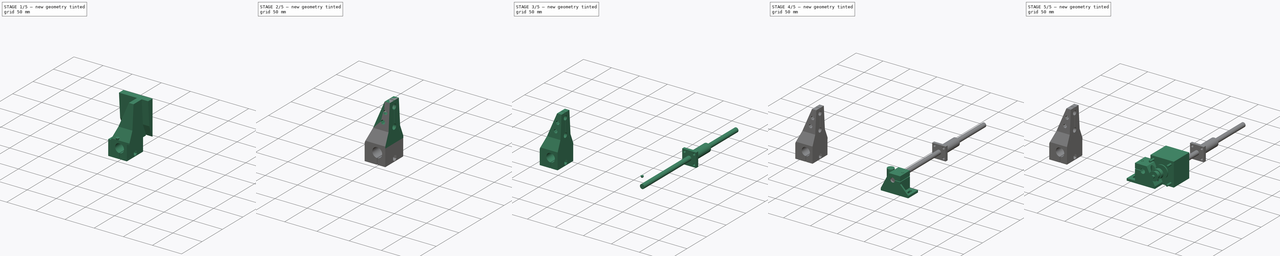
[diagram: build sequence overview — one tinted view per stage of 5, left to right]
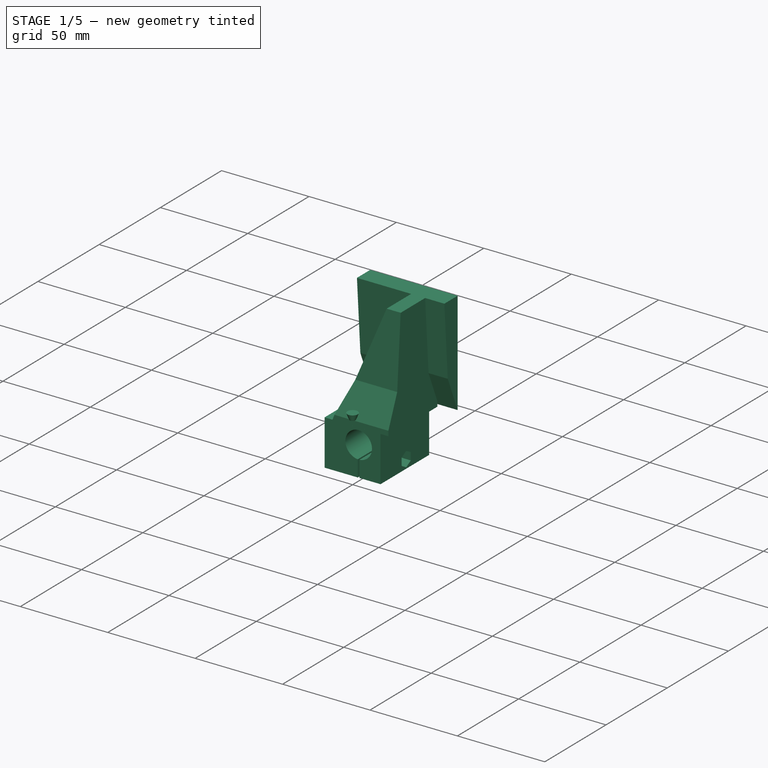
[diagram: stage 1 of 5 — iso view after this stage's code; geometry added in this stage tinted green]
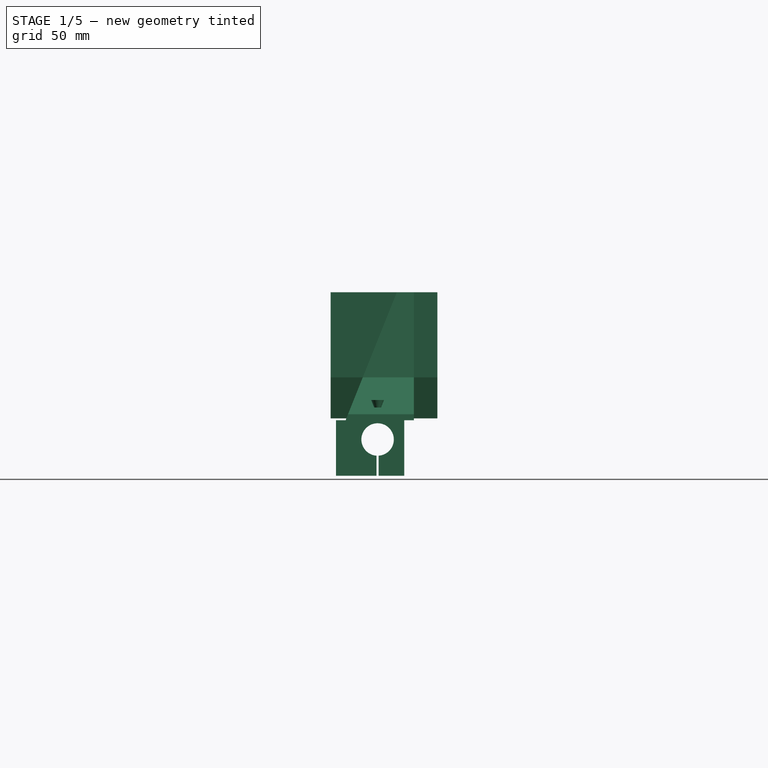
[diagram: stage 1 of 5 — front view after this stage's code; geometry added in this stage tinted green]
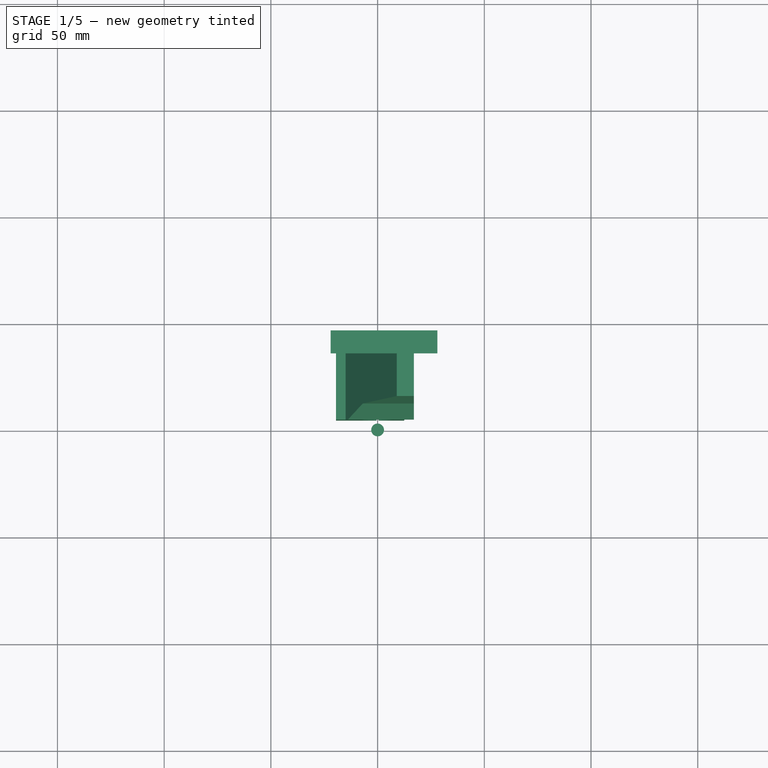
[diagram: stage 1 of 5 — top view after this stage's code; geometry added in this stage tinted green]
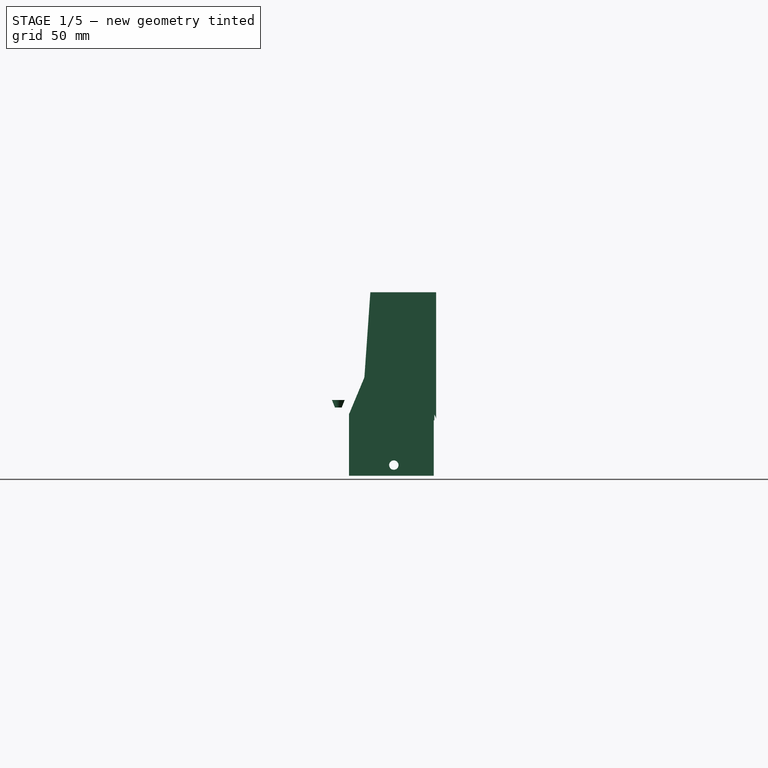
[diagram: stage 1 of 5 — right view after this stage's code; geometry added in this stage tinted green]
FCSTD DOCUMENT  (FreeCAD 0.18R4 (GitTag))
Label: NEMA_17
License: All rights reserved
LicenseURL: http://en.wikipedia.org/wiki/All_rights_reserved
objects: Part::Cylinder×24, Part::Cut×24, Part::MultiFuse×13, Part::Box×9, Part::Extrusion×9, Sketcher::SketchObject×7, Part::Cone×4, Part::RegularPolygon×3, Part::Revolution×1
note: 94 computed .brp shape members not serialized (recipe doc carries the construction recipe); baked Part::Feature solids carry a one-line shape summary decoded from their .brp

FEATURE [Part::Box] Box033  label="Куб033"
  AttacherType = Attacher::AttachEngine3D
  Height = 26
  Length = 32
  Placement = pos=(-19.5,5,-17) rot=(0,0,1;0rad)
  Width = 39.7
FEATURE [Part::Cylinder] Cylinder101  label="Цилиндр090"
  Angle = 360
  AttacherType = Attacher::AttachEngine3D
  Height = 45
  Placement = pos=(0,47.5,7e-15) rot=(1,0,0;1.5708rad)
  Radius = 7.6
FEATURE [Part::Cylinder] Cylinder100  label="Цилиндр089"
  Angle = 360
  AttacherType = Attacher::AttachEngine3D
  Height = 50
  Placement = pos=(-24,26,-8) rot=(0,1,0;1.5708rad)
  Radius = 2.2
FEATURE [Part::Box] Box035  label="Куб035"
  AttacherType = Attacher::AttachEngine3D
  Height = 14
  Length = 1
  Placement = pos=(-0.5,-2,-20) rot=(0,0,1;0rad)
  Width = 52
FEATURE [Sketcher::SketchObject] Sketch022
  Placement = pos=(0,0,0) rot=(0.57735,0.57735,0.57735;2.0944rad)
  sketch-geometry (4):
    g0: LineSegment StartX=15 StartY=69 StartZ=0 EndX=12.2079 EndY=29.0976 EndZ=0
    g1: LineSegment StartX=12.2079 StartY=29.0976 StartZ=0 EndX=4.204 EndY=9.91667 EndZ=0
    g2: LineSegment StartX=4.204 StartY=9.91667 StartZ=0 EndX=4.204 EndY=69 EndZ=0
    g3: LineSegment StartX=15 StartY=69 StartZ=0 EndX=4.204 EndY=69 EndZ=0
  constraints (12):
    c: DistanceX(g0) = 15
    c: DistanceY(g0) = 69
    c: Distance(g0) = 40
    c: Coincident(g1,g0)
    c: Vertical(g2)
    c: Coincident(g2,g1)
    c: Horizontal(g3)
    c: Coincident(g3,g0)
    c: Coincident(g2,g3)
    c: DistanceX(g1) = 4.204
    c: DistanceY(g1) = 9.91667
    c: Angle(g1,g2) = 0.395317
FEATURE [Part::Extrusion] Extrude028
  Base = -> Sketch022
  Dir = (1,0,0)
  DirMode = 0
  FaceMakerClass = Part::FaceMakerBullseye
  LengthFwd = 50
  LengthRev = 0
  Placement = pos=(-19,0,0) rot=(0,0,1;0rad)
  Solid = true
  Symmetric = false
FEATURE [Sketcher::SketchObject] Sketch020
  Placement = pos=(0,0,0) rot=(1,0,0;1.5708rad)
  sketch-geometry (4):
    g0: LineSegment StartX=-15 StartY=9 StartZ=0 EndX=17 EndY=9 EndZ=0
    g1: LineSegment StartX=17 StartY=9 StartZ=0 EndX=17 EndY=69 EndZ=0
    g2: LineSegment StartX=17 StartY=69 StartZ=0 EndX=9 EndY=69 EndZ=0
    g3: LineSegment StartX=9 StartY=69 StartZ=0 EndX=-15 EndY=9 EndZ=0
  constraints (12):
    c: Horizontal(g0)
    c: DistanceX(g0) = -15
    c: DistanceY(g0) = 9
    c: DistanceX(g0,g0) = 32
    c: Vertical(g1)
    c: Coincident(g1,g0)
    c: Horizontal(g2)
    c: DistanceY(g1,g1) = 60
    c: Coincident(g2,g1)
    c: DistanceX(g2,g2) = 8
    c: Coincident(g3,g2)
    c: Coincident(g3,g0)
FEATURE [Part::Extrusion] Extrude027
  Base = -> Sketch020
  Dir = (0,1,0)
  DirMode = 0
  FaceMakerClass = Part::FaceMakerBullseye
  LengthFwd = 40
  LengthRev = 0
  Placement = pos=(0,5,0) rot=(0,0,1;0rad)
  Solid = true
  Symmetric = false
FEATURE [Part::Cut] Cut089
  Base = -> Extrude027
  Tool = -> Extrude028
FEATURE [Part::Cone] Cone010  label="Конус010"
  Angle = 360
  AttacherType = Attacher::AttachEngine3D
  Height = 3.5
  Placement = pos=(0,0,15) rot=(0,0,1;0rad)
  Radius1 = 1.6
  Radius2 = 3
FEATURE [Part::Cone] Cone012  label="Конус012"
  Angle = 360
  AttacherType = Attacher::AttachEngine3D
  Height = 5
  Placement = pos=(-24,26,-8) rot=(0,-1,0;1.5708rad)
  Radius1 = 2.2
  Radius2 = 4
FEATURE [Part::MultiFuse] Fusion042  label="Винт М4х50 пот002"
  Placement = pos=(9,0,-4) rot=(0,0,1;0rad)
  Shapes = -> [Cone012,Cylinder100]
FEATURE [Part::Cut] Cut092
  Base = -> Box033
  Tool = -> Fusion042
FEATURE [Part::Cone] Cone011  label="Конус011"
  Angle = 360
  AttacherType = Attacher::AttachEngine3D
  Height = 3.5
  Placement = pos=(0,0,15) rot=(0,0,1;0rad)
  Radius1 = 1.6
  Radius2 = 3
FEATURE [Sketcher::SketchObject] Sketch021
  Placement = pos=(0,0,0) rot=(0.57735,0.57735,0.57735;2.0944rad)
  sketch-geometry (4):
    g0: LineSegment StartX=15 StartY=69 StartZ=0 EndX=12.2079 EndY=29.0976 EndZ=0
    g1: LineSegment StartX=12.2079 StartY=29.0976 StartZ=0 EndX=4.204 EndY=9.91667 EndZ=0
    g2: LineSegment StartX=4.204 StartY=9.91667 StartZ=0 EndX=4.204 EndY=69 EndZ=0
    g3: LineSegment StartX=15 StartY=69 StartZ=0 EndX=4.204 EndY=69 EndZ=0
  constraints (12):
    c: DistanceX(g0) = 15
    c: DistanceY(g0) = 69
    c: Distance(g0) = 40
    c: Coincident(g1,g0)
    c: Vertical(g2)
    c: Coincident(g2,g1)
    c: Horizontal(g3)
    c: Coincident(g3,g0)
    c: Coincident(g2,g3)
    c: DistanceX(g1) = 4.204
    c: DistanceY(g1) = 9.91667
    c: Angle(g1,g2) = 0.395317
FEATURE [Part::Extrusion] Extrude029
  Base = -> Sketch021
  Dir = (1,0,0)
  DirMode = 0
  FaceMakerClass = Part::FaceMakerBullseye
  LengthFwd = 50
  LengthRev = 0
  Placement = pos=(28,50,0) rot=(0,0,1;3.14159rad)
  Solid = true
  Symmetric = false
FEATURE [Part::RegularPolygon] RegularPolygon009  label="Правильный многоугольник009"
  AttacherType = Attacher::AttachEngine3D
  Circumradius = 4.3
  Polygon = 6
FEATURE [Part::Extrusion] Extrude031  label="Гайка М006"
  Base = -> RegularPolygon009
  Dir = (0,0,1)
  DirMode = 0
  FaceMakerClass = Part::FaceMakerBullseye
  LengthFwd = 8
  LengthRev = 0
  Placement = pos=(5,26,-12) rot=(0,1,0;1.5708rad)
  Solid = true
  Symmetric = false
FEATURE [Part::Cut] Cut091
  Base = -> Cut092
  Tool = -> Extrude031
FEATURE [Part::Cut] Cut093
  Base = -> Cut091
  Tool = -> Box035
FEATURE [Part::Cut] Cut094
  Base = -> Cut093
  Tool = -> Cylinder101
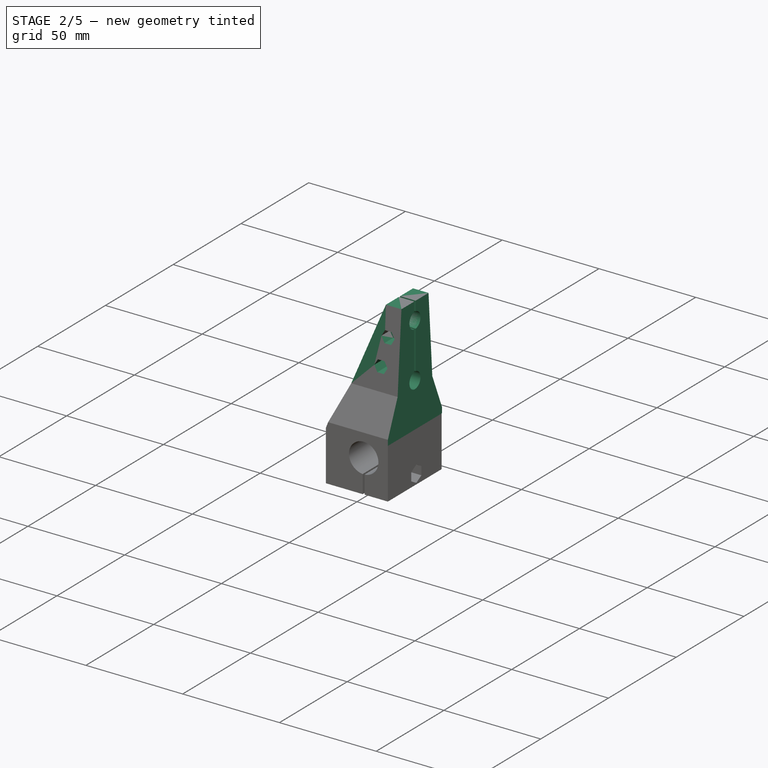
[diagram: stage 2 of 5 — iso view after this stage's code; geometry added in this stage tinted green]
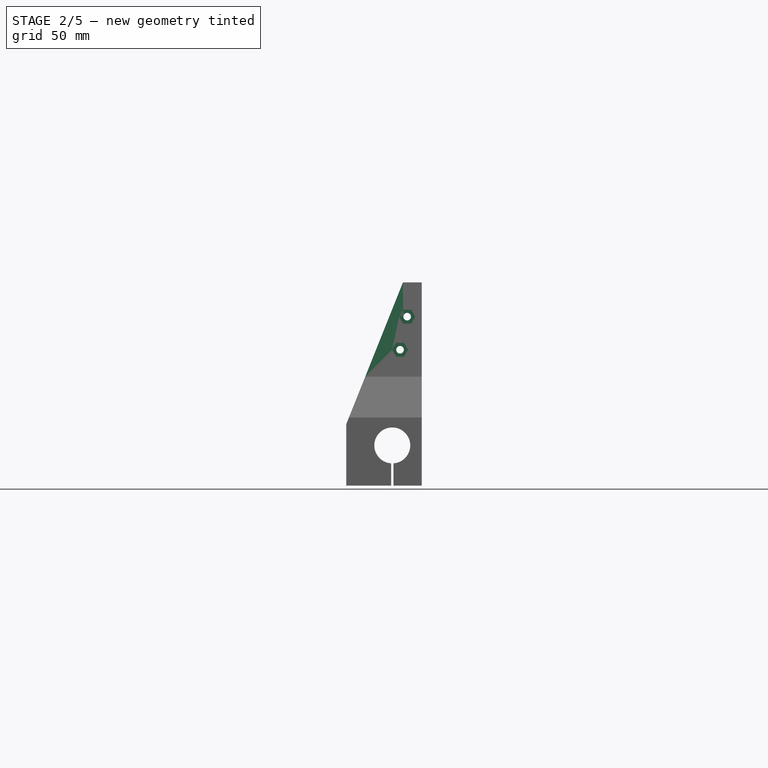
[diagram: stage 2 of 5 — front view after this stage's code; geometry added in this stage tinted green]
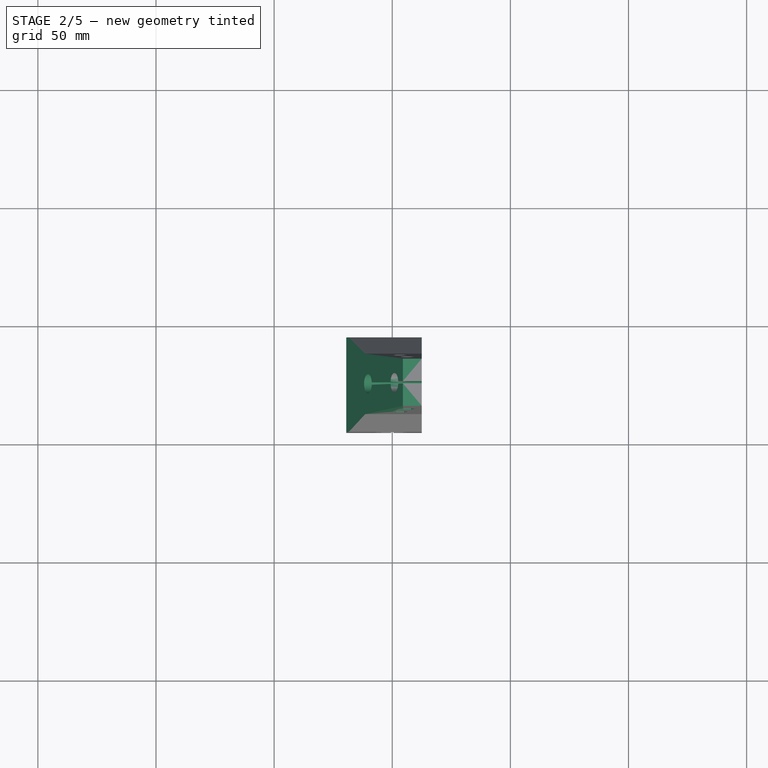
[diagram: stage 2 of 5 — top view after this stage's code; geometry added in this stage tinted green]
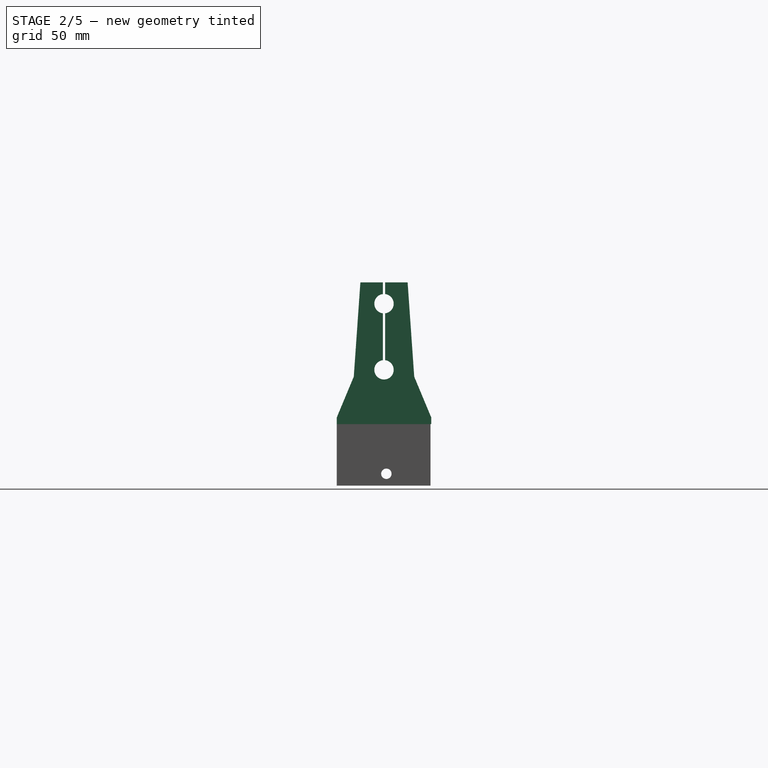
[diagram: stage 2 of 5 — right view after this stage's code; geometry added in this stage tinted green]
FEATURE [Part::Cylinder] Cylinder098  label="Направляющая010"
  Angle = 360
  AttacherType = Attacher::AttachEngine3D
  Height = 240
  Placement = pos=(-7.9,25,60) rot=(0.57735,-0.57735,0.57735;4.18879rad)
  Radius = 4.1
FEATURE [Part::Cylinder] Cylinder099  label="Цилиндр088"
  Angle = 360
  AttacherType = Attacher::AttachEngine3D
  Height = 15
  Radius = 1.6
FEATURE [Part::Cylinder] Cylinder096  label="Цилиндр087"
  Angle = 360
  AttacherType = Attacher::AttachEngine3D
  Height = 15
  Radius = 1.6
FEATURE [Part::Cylinder] Cylinder097  label="Направляющая009"
  Angle = 360
  AttacherType = Attacher::AttachEngine3D
  Height = 240
  Placement = pos=(-33,25,32) rot=(0.57735,-0.57735,0.57735;4.18879rad)
  Radius = 4.1
FEATURE [Part::Box] Box034  label="Куб034"
  AttacherType = Attacher::AttachEngine3D
  Height = 48
  Length = 36
  Placement = pos=(-12,24.5,31) rot=(0,0,1;0rad)
  Width = 1
FEATURE [Part::RegularPolygon] RegularPolygon007  label="Правильный многоугольник007"
  AttacherType = Attacher::AttachEngine3D
  Circumradius = 3.4
  Polygon = 6
FEATURE [Part::RegularPolygon] RegularPolygon008  label="Правильный многоугольник008"
  AttacherType = Attacher::AttachEngine3D
  Circumradius = 3.4
  Polygon = 6
FEATURE [Part::Extrusion] Extrude030
  Base = -> RegularPolygon008
  Dir = (0,0,1)
  DirMode = 0
  FaceMakerClass = Part::FaceMakerBullseye
  LengthFwd = 15
  LengthRev = 0
  Placement = pos=(10.8,5.2,54.5) rot=(-1,0,0;1.5708rad)
  Solid = true
  Symmetric = false
FEATURE [Part::Extrusion] Extrude026
  Base = -> RegularPolygon007
  Dir = (0,0,1)
  DirMode = 0
  FaceMakerClass = Part::FaceMakerBullseye
  LengthFwd = 15
  LengthRev = 0
  Placement = pos=(7.8,6.8,40.5) rot=(-1,0,0;1.5708rad)
  Solid = true
  Symmetric = false
FEATURE [Part::MultiFuse] Fusion044  label="Винт М3 потай009"
  Placement = pos=(7.8,19,40.5) rot=(-1,0,0;1.5708rad)
  Shapes = -> [Cone010,Cylinder096]
FEATURE [Part::MultiFuse] Fusion041  label="Винт М3 потай008"
  Placement = pos=(10.8,18,54.5) rot=(-1,0,0;1.5708rad)
  Shapes = -> [Cone011,Cylinder099]
FEATURE [Part::Cut] Cut083
  Base = -> Cut089
  Tool = -> Extrude029
FEATURE [Part::Cut] Cut090
  Base = -> Cut083
  Tool = -> Cylinder097
FEATURE [Part::Cut] Cut082
  Base = -> Cut090
  Tool = -> Cylinder098
FEATURE [Part::Cut] Cut088
  Base = -> Cut082
  Tool = -> Box034
FEATURE [Part::Cut] Cut084
  Base = -> Cut088
  Tool = -> Extrude030
FEATURE [Part::Cut] Cut085
  Base = -> Cut084
  Tool = -> Extrude026
FEATURE [Part::Cut] Cut086
  Base = -> Cut085
  Tool = -> Fusion044
FEATURE [Part::Cut] Cut087
  Base = -> Cut086
  Placement = pos=(-4.5,0,0) rot=(0,0,1;0rad)
  Tool = -> Fusion041
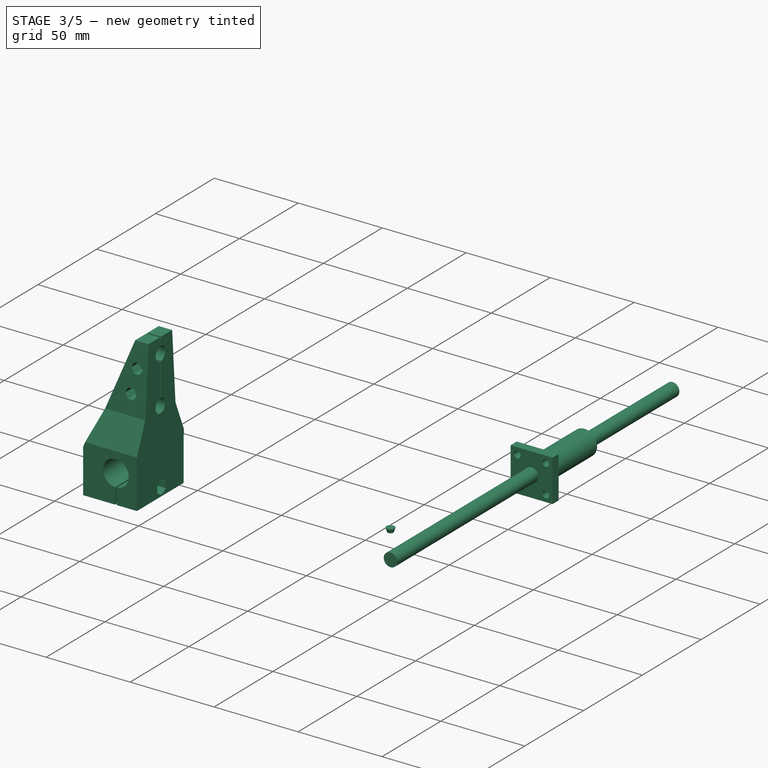
[diagram: stage 3 of 5 — iso view after this stage's code; geometry added in this stage tinted green]
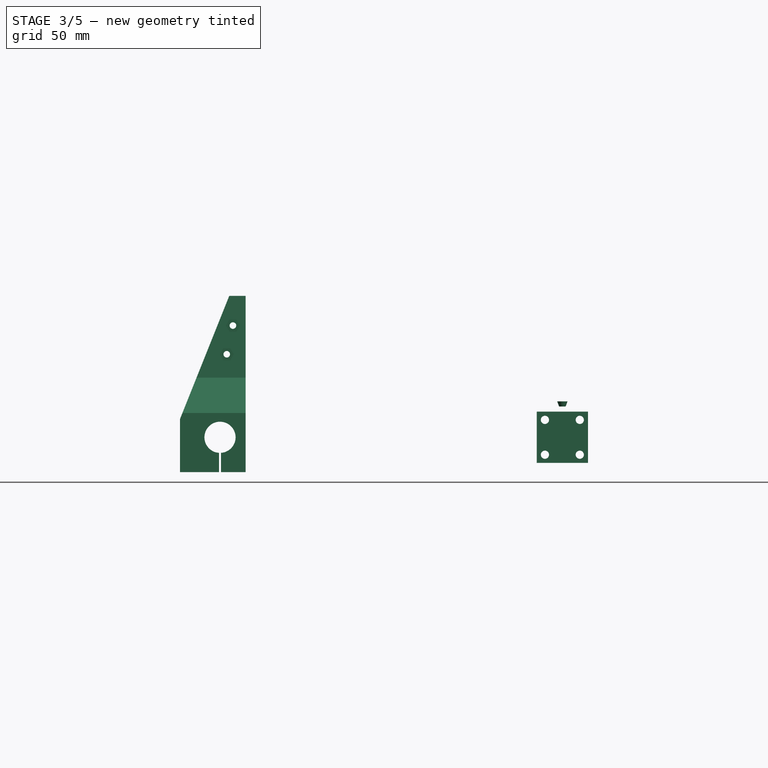
[diagram: stage 3 of 5 — front view after this stage's code; geometry added in this stage tinted green]
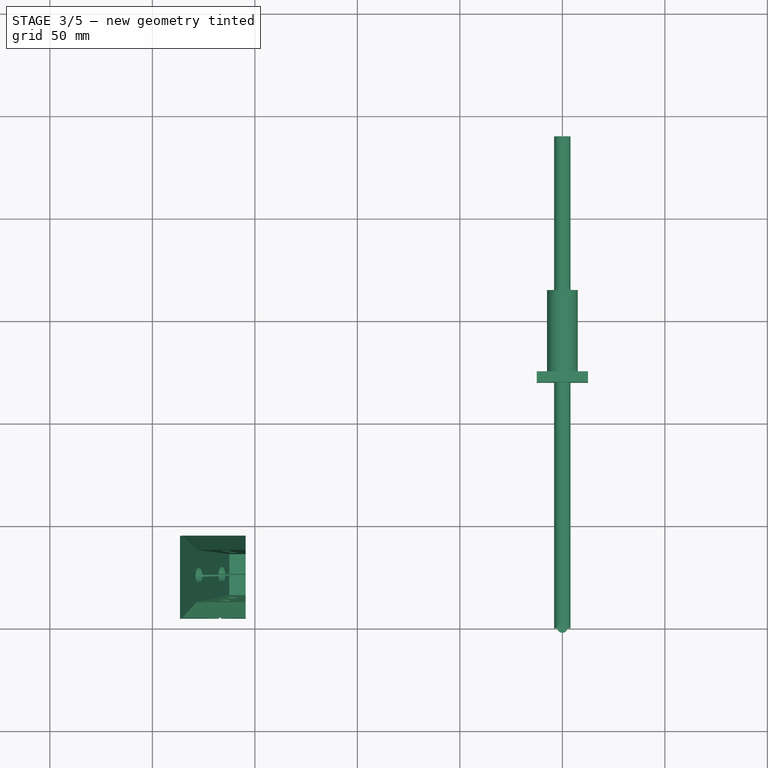
[diagram: stage 3 of 5 — top view after this stage's code; geometry added in this stage tinted green]
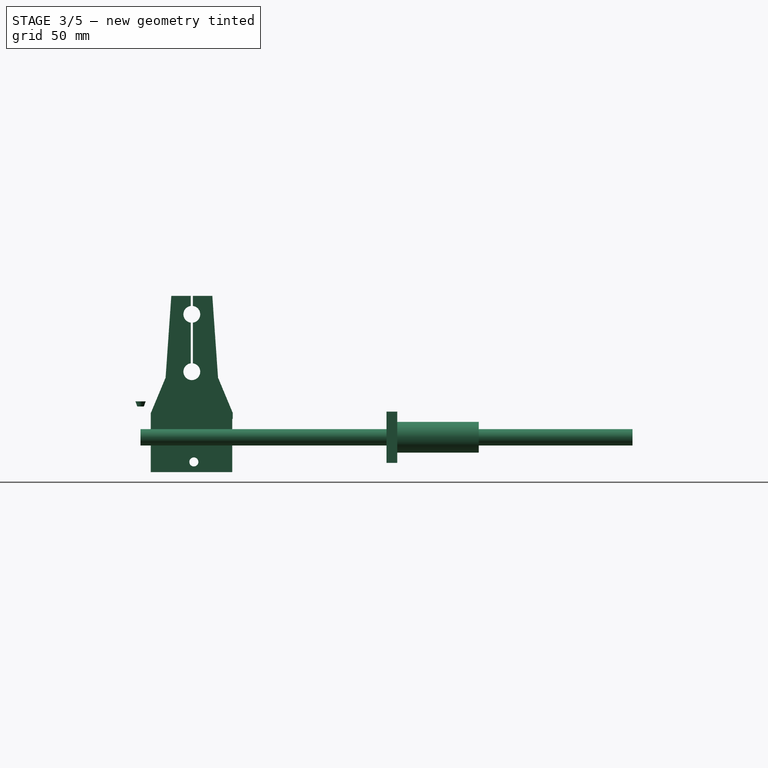
[diagram: stage 3 of 5 — right view after this stage's code; geometry added in this stage tinted green]
FEATURE [Part::Cone] Cone003  label="Конус003"
  Angle = 360
  AttacherType = Attacher::AttachEngine3D
  Height = 2.5
  Placement = pos=(0,0,15) rot=(0,0,1;0rad)
  Radius1 = 1.6
  Radius2 = 2.5
FEATURE [Part::Cylinder] Cylinder051  label="Направляющая"
  Angle = 360
  AttacherType = Attacher::AttachEngine3D
  Height = 240
  Placement = pos=(0,0,0) rot=(-1,0,0;1.5708rad)
  Radius = 4
FEATURE [Part::Cylinder] Cylinder052  label="Цилиндр047"
  Angle = 360
  AttacherType = Attacher::AttachEngine3D
  Height = 10
  Placement = pos=(4,21,-2) rot=(0,0,1;0rad)
  Radius = 2
FEATURE [Part::Box] Box019  label="Куб019"
  AttacherType = Attacher::AttachEngine3D
  Height = 5.2
  Length = 25
  Width = 25
FEATURE [Part::Cylinder] Cylinder006  label="Цилиндр006"
  Angle = 360
  AttacherType = Attacher::AttachEngine3D
  Height = 10
  Placement = pos=(21,21,-2) rot=(0,0,1;0rad)
  Radius = 2
FEATURE [Part::Cylinder] Cylinder053  label="Цилиндр048"
  Angle = 360
  AttacherType = Attacher::AttachEngine3D
  Height = 40
  Placement = pos=(12.5,12.5,5) rot=(0,0,1;0rad)
  Radius = 7.5
FEATURE [Part::Cylinder] Cylinder054  label="Цилиндр049"
  Angle = 360
  AttacherType = Attacher::AttachEngine3D
  Height = 60
  Placement = pos=(12.5,12.5,-7) rot=(0,0,1;0rad)
  Radius = 4
FEATURE [Part::Cylinder] Cylinder055  label="Цилиндр050"
  Angle = 360
  AttacherType = Attacher::AttachEngine3D
  Height = 10
  Placement = pos=(4,4,-2) rot=(0,0,1;0rad)
  Radius = 2
FEATURE [Part::Cylinder] Cylinder007  label="Цилиндр007"
  Angle = 360
  AttacherType = Attacher::AttachEngine3D
  Height = 10
  Placement = pos=(21,4,-2) rot=(0,0,1;0rad)
  Radius = 2
FEATURE [Part::MultiFuse] Fusion022
  Shapes = -> [Box019,Cylinder053]
FEATURE [Part::Cut] Cut
  Base = -> Fusion022
  Tool = -> Cylinder054
FEATURE [Part::Cut] Cut001
  Base = -> Cut
  Tool = -> Cylinder055
FEATURE [Part::Cut] Cut002
  Base = -> Cut001
  Tool = -> Cylinder052
FEATURE [Part::Cut] Cut003
  Base = -> Cut002
  Tool = -> Cylinder007
FEATURE [Part::Cut] Cut004  label="Линейный подшипник"
  Base = -> Cut003
  Placement = pos=(-12.5,120,12.5) rot=(-1,0,0;1.5708rad)
  Tool = -> Cylinder006
FEATURE [Part::MultiFuse] Fusion043
  Placement = pos=(-167,-6.2e-15,0) rot=(0,0,1;0rad)
  Shapes = -> [Cut094,Cut087]
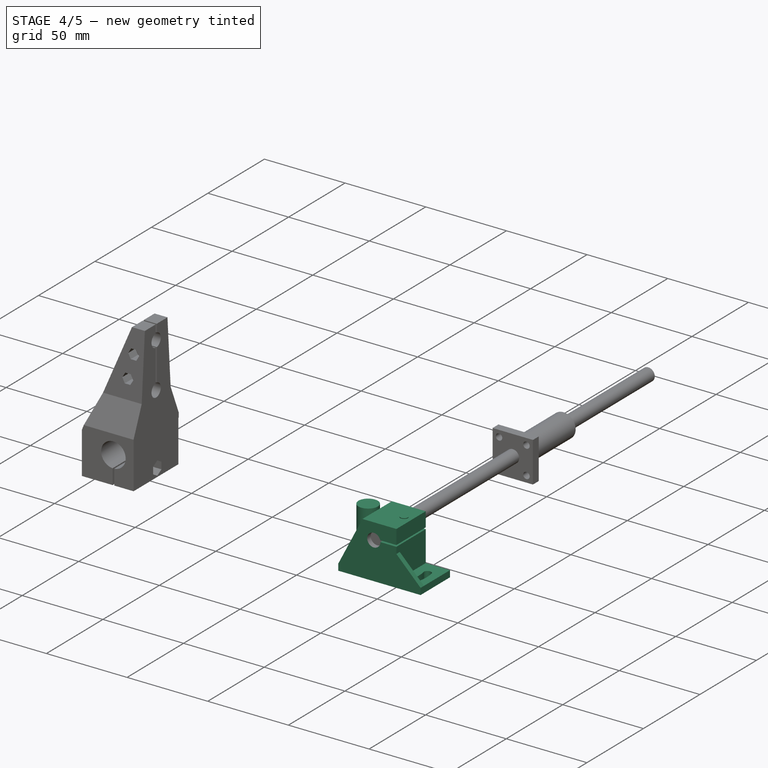
[diagram: stage 4 of 5 — iso view after this stage's code; geometry added in this stage tinted green]
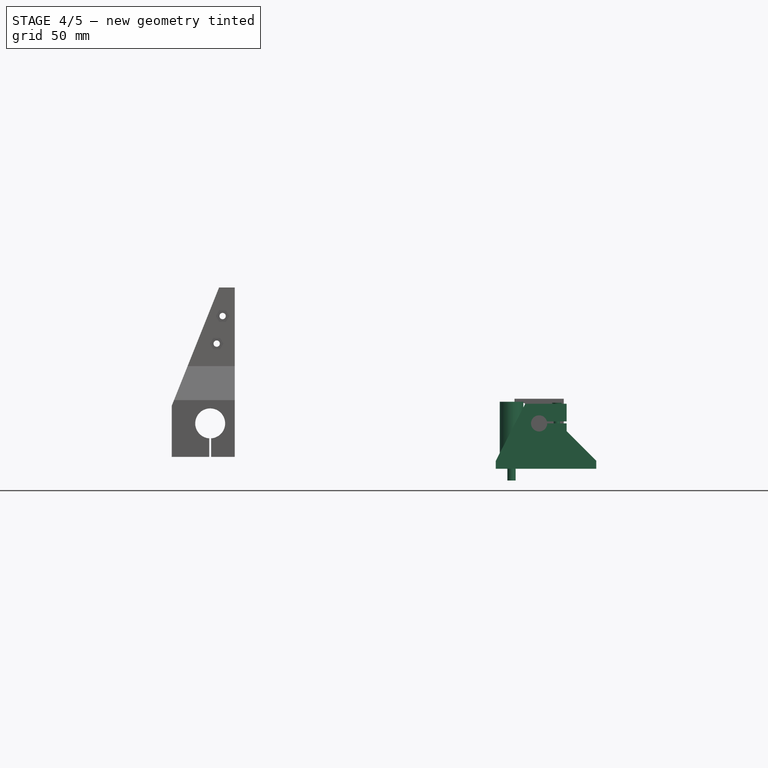
[diagram: stage 4 of 5 — front view after this stage's code; geometry added in this stage tinted green]
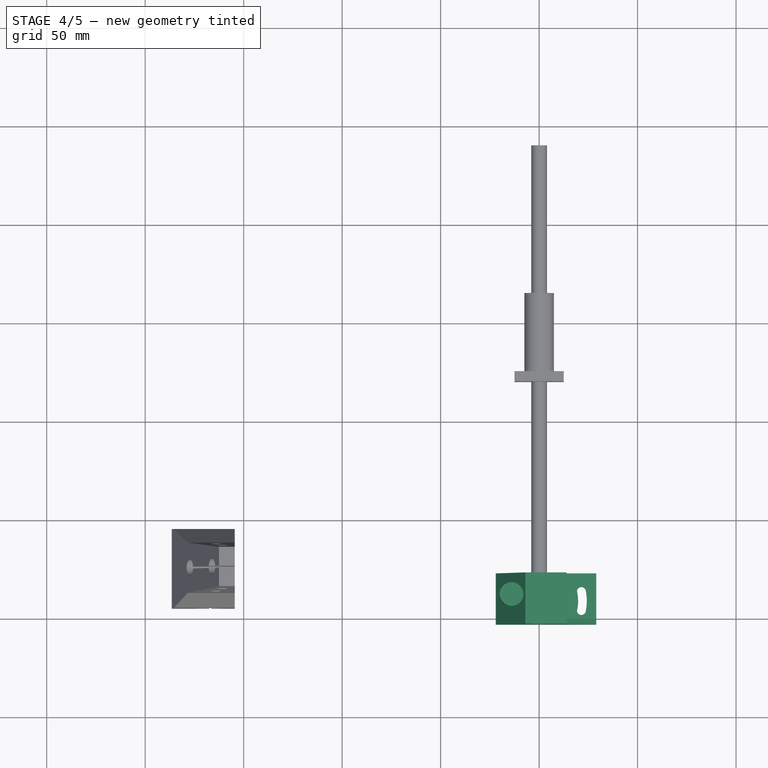
[diagram: stage 4 of 5 — top view after this stage's code; geometry added in this stage tinted green]
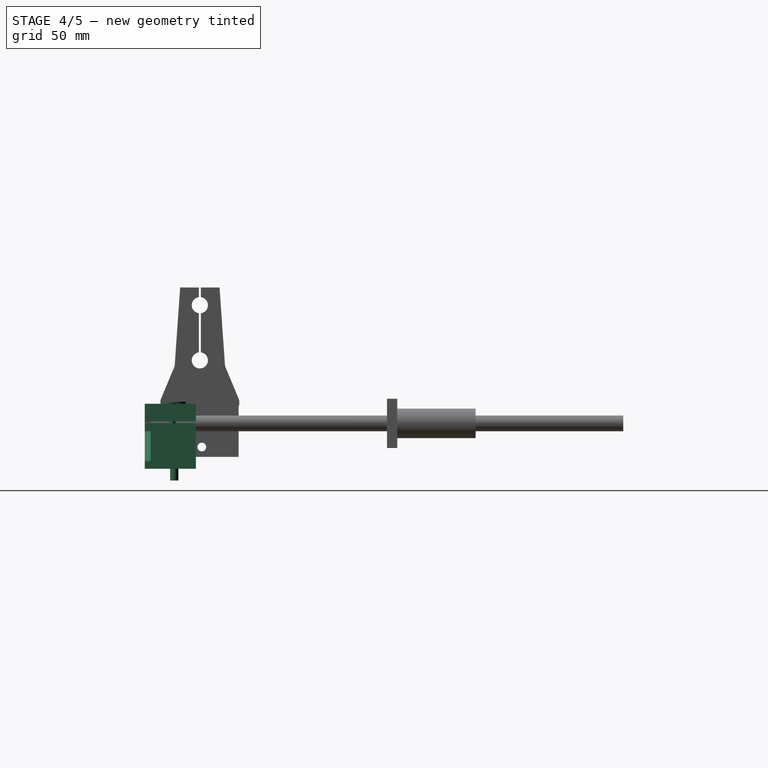
[diagram: stage 4 of 5 — right view after this stage's code; geometry added in this stage tinted green]
FEATURE [Sketcher::SketchObject] Sketch007
  sketch-geometry (4):
    g0: ArcOfCircle CenterX=9 CenterY=15 CenterZ=0 NormalX=0 NormalY=0 NormalZ=1 AngleXU=0 Radius=27.2 StartAngle=6.09831 EndAngle=6.46806
    g1: ArcOfCircle CenterX=9 CenterY=15 CenterZ=0 NormalX=0 NormalY=0 NormalZ=1 AngleXU=0 Radius=22.8 StartAngle=6.06209 EndAngle=6.50428
    g2: ArcOfCircle CenterX=33.4907 CenterY=10.1383 CenterZ=0 NormalX=0 NormalY=0 NormalZ=1 AngleXU=0 Radius=2.25 StartAngle=3.20309 EndAngle=6.22168
    g3: ArcOfCircle CenterX=33.4907 CenterY=19.8617 CenterZ=0 NormalX=0 NormalY=0 NormalZ=1 AngleXU=0 Radius=2.25 StartAngle=0.0615005 EndAngle=3.08009
  constraints (15):
    c: DistanceX(g0) = 9
    c: DistanceY(g0) = 15
    c: Coincident(g1,g0)
    c: Radius(g1) = 22.8
    c: Radius(g0) = 27.2
    c: DistanceY(g-1,g1) = 10
    c: DistanceY(g-1,g0) = 10
    c: DistanceY(g1,g1) = 10
    c: DistanceY(g0,g0) = 10
    c: Coincident(g2,g1)
    c: Coincident(g2,g0)
    c: Radius(g2) = 2.25
    c: Coincident(g3,g1)
    c: Coincident(g0,g3)
    c: Radius(g3) = 2.25
FEATURE [Sketcher::SketchObject] Sketch006
  Placement = pos=(0,0,0) rot=(1,0,0;1.5708rad)
  sketch-geometry (3):
    g0: LineSegment StartX=-22 StartY=-19 StartZ=0 EndX=-7 EndY=-19 EndZ=0
    g1: LineSegment StartX=-7 StartY=-19 StartZ=0 EndX=-7 EndY=-4 EndZ=0
    g2: LineSegment StartX=-7 StartY=-4 StartZ=0 EndX=-22 EndY=-19 EndZ=0
  constraints (9):
    c: Horizontal(g0)
    c: Vertical(g1)
    c: DistanceX(g0) = -7
    c: DistanceY(g0) = -19
    c: Coincident(g0,g1)
    c: Coincident(g2,g0)
    c: DistanceY(g1,g1) = 15
    c: Coincident(g2,g1)
    c: DistanceX(g0,g0) = 15
FEATURE [Sketcher::SketchObject] Sketch008
  Placement = pos=(0,0,0) rot=(1,0,0;1.5708rad)
  sketch-geometry (3):
    g0: LineSegment StartX=-22 StartY=-19 StartZ=0 EndX=-7 EndY=-19 EndZ=0
    g1: LineSegment StartX=-7 StartY=-19 StartZ=0 EndX=-7 EndY=10 EndZ=0
    g2: LineSegment StartX=-7 StartY=10 StartZ=0 EndX=-22 EndY=-19 EndZ=0
  constraints (9):
    c: Horizontal(g0)
    c: Vertical(g1)
    c: DistanceX(g0) = -7
    c: DistanceY(g0) = -19
    c: Coincident(g0,g1)
    c: Coincident(g2,g0)
    c: DistanceY(g1,g1) = 29
    c: Coincident(g2,g1)
    c: DistanceX(g0,g0) = 15
FEATURE [Part::Box] Box018  label="Куб018"
  AttacherType = Attacher::AttachEngine3D
  Height = 4
  Length = 51
  Placement = pos=(-22,0,-23) rot=(0,0,1;0rad)
  Width = 26
FEATURE [Part::Cylinder] Cylinder047  label="Цилиндр044"
  Angle = 360
  AttacherType = Attacher::AttachEngine3D
  Height = 30
  Placement = pos=(0,0,10) rot=(0,0,1;0rad)
  Radius = 6
FEATURE [Part::Extrusion] Extrude010
  Base = -> Sketch008
  Dir = (0,1,0)
  DirMode = 0
  FaceMakerClass = Part::FaceMakerBullseye
  LengthFwd = 26
  LengthRev = 0
  Placement = pos=(0,-3,0) rot=(0,0,1;0rad)
  Solid = true
  Symmetric = false
FEATURE [Part::Cylinder] Cylinder048  label="Направляющая003"
  Angle = 360
  AttacherType = Attacher::AttachEngine3D
  Height = 240
  Placement = pos=(0,-7,-2e-15) rot=(-1,0,0;1.5708rad)
  Radius = 4.1
FEATURE [Part::Extrusion] Extrude012
  Base = -> Sketch006
  Dir = (0,1,0)
  DirMode = 0
  FaceMakerClass = Part::FaceMakerBullseye
  LengthFwd = 3
  LengthRev = 0
  Placement = pos=(7,4e-15,0) rot=(0,0,1;3.14159rad)
  Solid = true
  Symmetric = false
FEATURE [Part::Cylinder] Cylinder049  label="Цилиндр045"
  Angle = 360
  AttacherType = Attacher::AttachEngine3D
  Height = 10
  Radius = 2.1
FEATURE [Part::Extrusion] Extrude011
  Base = -> Sketch007
  Dir = (0,0,-1)
  DirMode = 0
  FaceMakerClass = Part::FaceMakerBullseye
  LengthFwd = 10
  LengthRev = 0
  Placement = pos=(-12,-3,-17) rot=(0,0,1;0rad)
  Solid = true
  Symmetric = false
FEATURE [Part::Cut] Cut044
  Base = -> Box018
  Placement = pos=(0,-3,0) rot=(0,0,1;0rad)
  Tool = -> Extrude011
FEATURE [Part::Box] Box017  label="Куб017"
  AttacherType = Attacher::AttachEngine3D
  Height = 33
  Length = 21
  Placement = pos=(-7,-3,-23) rot=(0,0,1;0rad)
  Width = 26
FEATURE [Part::Cylinder] Cylinder046  label="Цилиндр043"
  Angle = 360
  AttacherType = Attacher::AttachEngine3D
  Height = 15
  Radius = 1.6
FEATURE [Part::Box] Box016  label="Куб016"
  AttacherType = Attacher::AttachEngine3D
  Height = 1
  Length = 12
  Placement = pos=(3,-6,0) rot=(0,0,1;0rad)
  Width = 35
FEATURE [Part::Cut] Cut045
  Base = -> Box017
  Tool = -> Box016
FEATURE [Part::Cut] Cut041
  Base = -> Cut045
  Tool = -> Cylinder048
FEATURE [Part::Cylinder] Cylinder050  label="Цилиндр046"
  Angle = 360
  AttacherType = Attacher::AttachEngine3D
  Height = 4
  Placement = pos=(9,11,-8) rot=(0,0,1;0rad)
  Radius = 4
FEATURE [Part::MultiFuse] Fusion019  label="Саморез003"
  Placement = pos=(-14,12,-29) rot=(0,0,1;0rad)
  Shapes = -> [Cylinder049,Cylinder047]
FEATURE [Part::MultiFuse] Fusion020
  Shapes = -> [Cut041,Cut044,Extrude010]
FEATURE [Part::MultiFuse] Fusion021  label="Винт М3 потай003"
  Placement = pos=(9,11,-7) rot=(0,0,1;0rad)
  Shapes = -> [Cone003,Cylinder046]
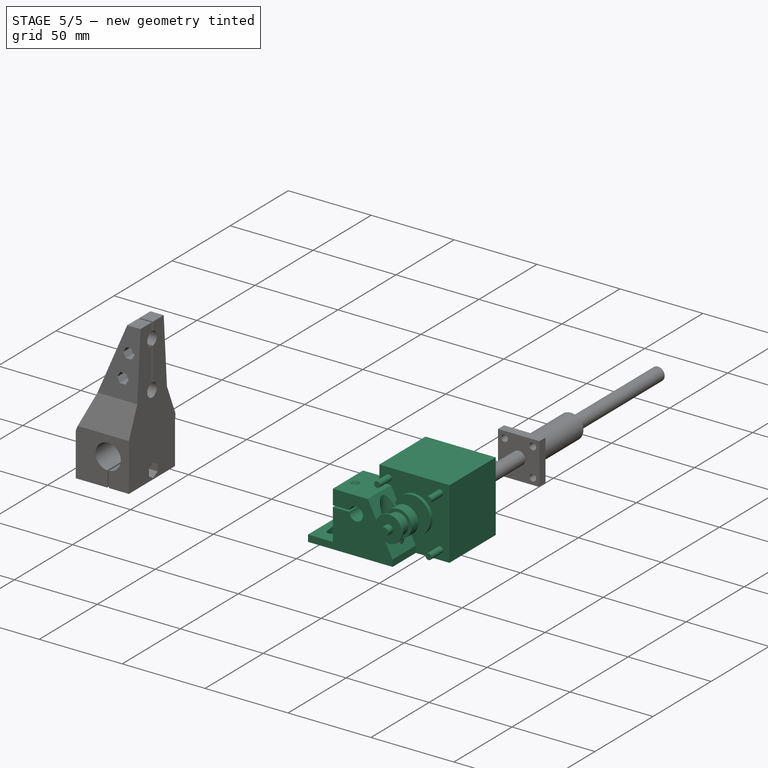
[diagram: stage 5 of 5 — iso view after this stage's code; geometry added in this stage tinted green]
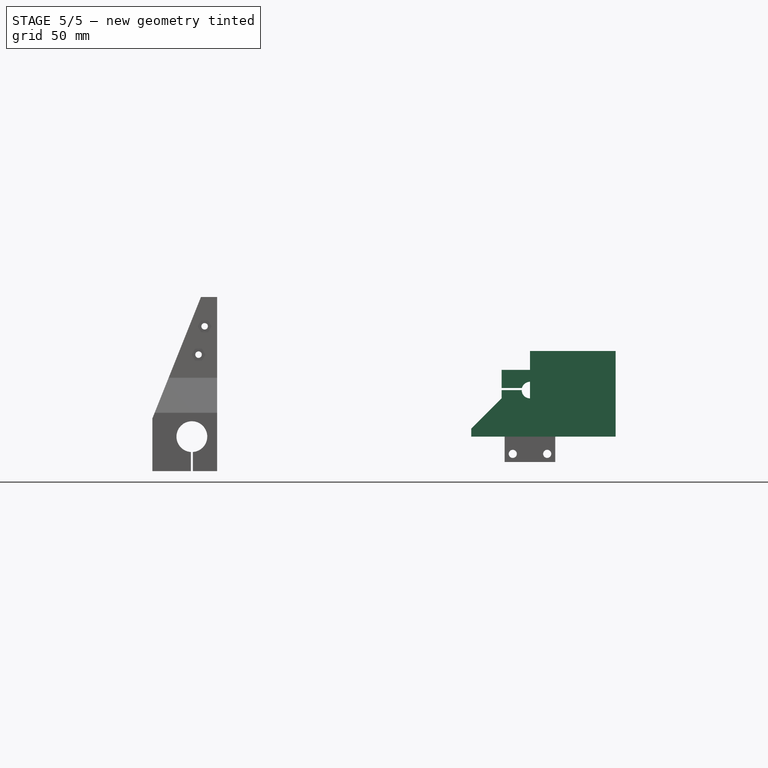
[diagram: stage 5 of 5 — front view after this stage's code; geometry added in this stage tinted green]
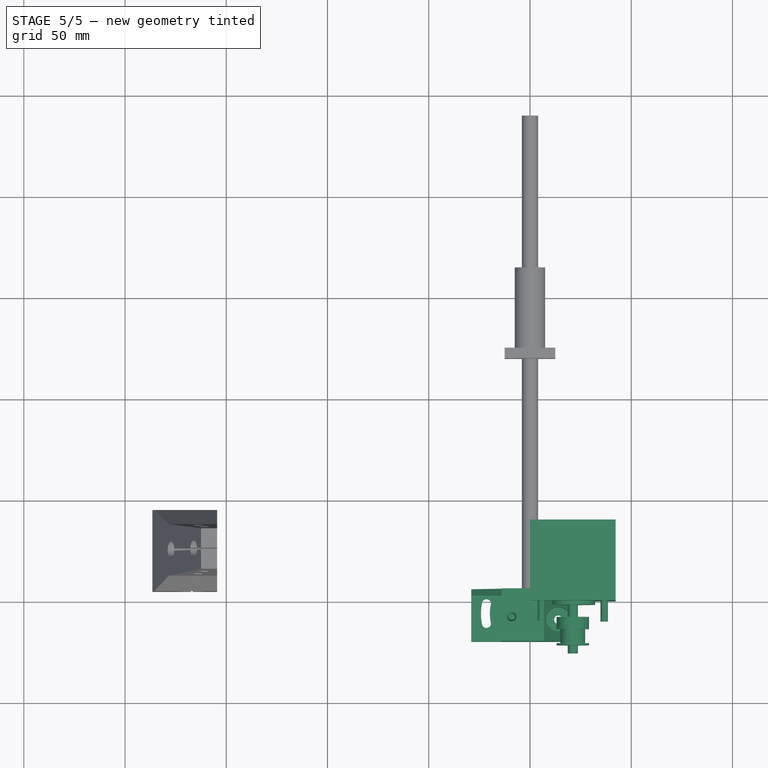
[diagram: stage 5 of 5 — top view after this stage's code; geometry added in this stage tinted green]
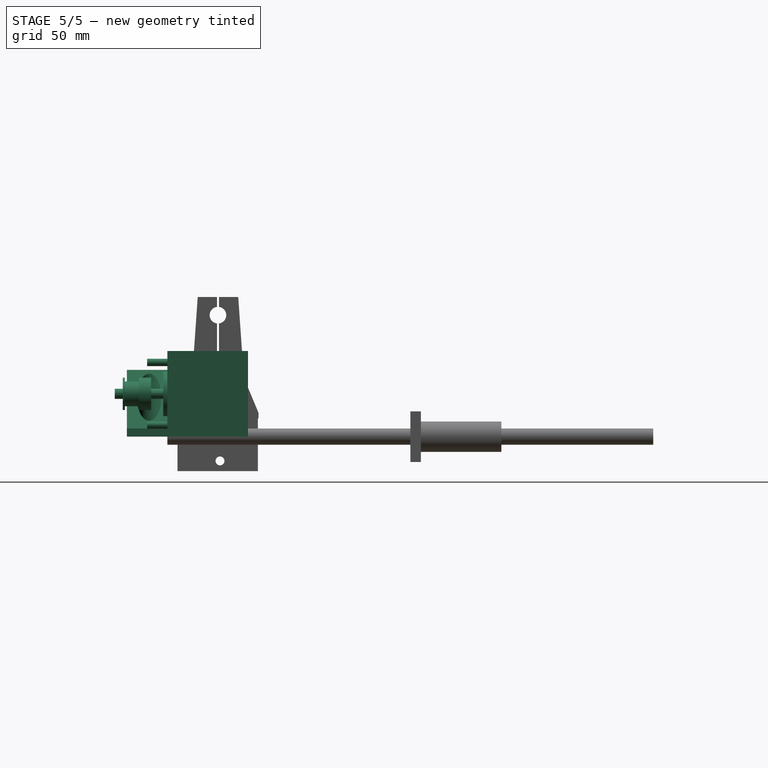
[diagram: stage 5 of 5 — right view after this stage's code; geometry added in this stage tinted green]
FEATURE [Part::Box] Box  label="Куб"
  AttacherType = Attacher::AttachEngine3D
  Height = 42.3
  Length = 42.3
  Width = 39.8
FEATURE [Part::Cylinder] Cylinder  label="Цилиндр"
  Angle = 360
  AttacherType = Attacher::AttachEngine3D
  Height = 2
  Placement = pos=(21.15,0,21.15) rot=(1,0,0;1.5708rad)
  Radius = 11
FEATURE [Part::Cylinder] Cylinder001  label="Цилиндр001"
  Angle = 360
  AttacherType = Attacher::AttachEngine3D
  Height = 24
  Placement = pos=(21.15,-2,21.15) rot=(1,0,0;1.5708rad)
  Radius = 2.5
FEATURE [Part::MultiFuse] Fusion
  Shapes = -> [Box,Cylinder]
FEATURE [Part::MultiFuse] Fusion001  label="Motor"
  Shapes = -> [Fusion,Cylinder001]
FEATURE [Sketcher::SketchObject] Sketch
  sketch-geometry (8):
    g0: LineSegment StartX=-2.5 StartY=0 StartZ=0 EndX=-8 EndY=0 EndZ=0
    g1: LineSegment StartX=-8 StartY=0 StartZ=0 EndX=-8 EndY=6 EndZ=0
    g2: LineSegment StartX=-8 StartY=6 StartZ=0 EndX=-6.11 EndY=6 EndZ=0
    g3: LineSegment StartX=-6.11 StartY=6 StartZ=0 EndX=-6.11 EndY=13 EndZ=0
    g4: LineSegment StartX=-6.11 StartY=13 StartZ=0 EndX=-8 EndY=13 EndZ=0
    g5: LineSegment StartX=-8 StartY=13 StartZ=0 EndX=-8 EndY=14 EndZ=0
    g6: LineSegment StartX=-8 StartY=14 StartZ=0 EndX=-2.5 EndY=14 EndZ=0
    g7: LineSegment StartX=-2.5 StartY=14 StartZ=0 EndX=-2.5 EndY=0 EndZ=0
  constraints (24):
    c: Horizontal(g0)
    c: DistanceX(g0,g0) = 5.5
    c: DistanceX(g0) = -2.5
    c: DistanceY(g0) = 0
    c: Vertical(g1)
    c: DistanceY(g1,g1) = 6
    c: Coincident(g1,g0)
    c: Horizontal(g2)
    c: DistanceX(g2,g2) = 1.89
    c: Coincident(g2,g1)
    c: Vertical(g3)
    c: DistanceY(g3,g3) = 7
    c: Coincident(g3,g2)
    c: Horizontal(g4)
    c: Equal(g4,g2)
    c: Coincident(g4,g3)
    c: Vertical(g5)
    c: DistanceY(g5,g5) = 1
    c: Coincident(g5,g4)
    c: Horizontal(g6)
    c: Equal(g6,g0)
    c: Coincident(g6,g5)
    c: Coincident(g7,g6)
    c: Coincident(g7,g0)
FEATURE [Part::Revolution] Revolve  label="20T5mm"
  Angle = 360
  Axis = (0,1,0)
  Base = (0,0,0)
  FaceMakerClass = Part::FaceMakerBullseye
  Placement = pos=(21.15,-8,21.15) rot=(-1,0,0;3.14159rad)
  Solid = true
  Source = -> Sketch
  Symmetric = false
FEATURE [Part::Cylinder] Cylinder002  label="Цилиндр002"
  Angle = 360
  AttacherType = Attacher::AttachEngine3D
  Height = 10
  Placement = pos=(5.65,0,5.65) rot=(1,0,0;1.5708rad)
  Radius = 1.8
FEATURE [Part::Cylinder] Cylinder003  label="Цилиндр003"
  Angle = 360
  AttacherType = Attacher::AttachEngine3D
  Height = 10
  Placement = pos=(36.65,0,5.65) rot=(1,0,0;1.5708rad)
  Radius = 1.8
FEATURE [Part::Cylinder] Cylinder004  label="Цилиндр004"
  Angle = 360
  AttacherType = Attacher::AttachEngine3D
  Height = 10
  Placement = pos=(5.65,0,36.65) rot=(1,0,0;1.5708rad)
  Radius = 1.8
FEATURE [Part::Cylinder] Cylinder005  label="Цилиндр005"
  Angle = 360
  AttacherType = Attacher::AttachEngine3D
  Height = 10
  Placement = pos=(36.65,0,36.65) rot=(1,0,0;1.5708rad)
  Radius = 1.8
FEATURE [Part::MultiFuse] Fusion002  label="NEMA-17"
  Shapes = -> [Fusion001,Cylinder004,Cylinder005,Cylinder002,Cylinder003]
FEATURE [Part::Box] Box015  label="Куб015"
  AttacherType = Attacher::AttachEngine3D
  Height = 4
  Length = 13
  Placement = pos=(9,7,-8) rot=(0,0,1;0rad)
  Width = 8
FEATURE [Part::MultiFuse] Fusion018
  Shapes = -> [Box015,Cylinder050]
FEATURE [Part::MultiFuse] Fusion017
  Shapes = -> [Fusion020,Extrude012]
FEATURE [Part::Cut] Cut043
  Base = -> Fusion017
  Tool = -> Fusion018
FEATURE [Part::Cut] Cut046
  Base = -> Cut043
  Tool = -> Fusion021
FEATURE [Part::Cut] Cut042  label="Стойка направляющей001"
  Base = -> Cut046
  Placement = pos=(0,3,23) rot=(0,0,1;3.14159rad)
  Tool = -> Fusion019
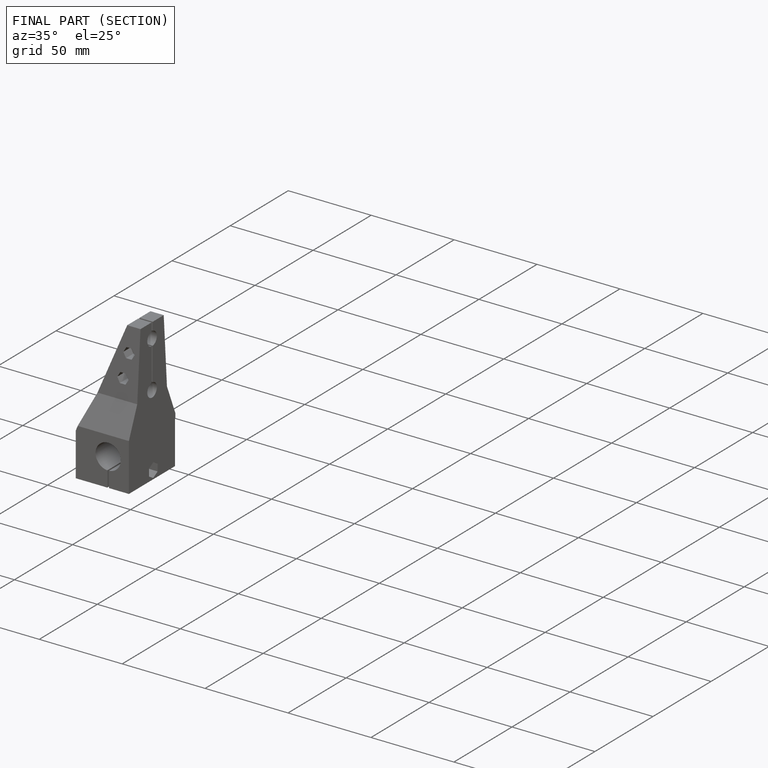
[diagram: finished part — half-section view (interior)]
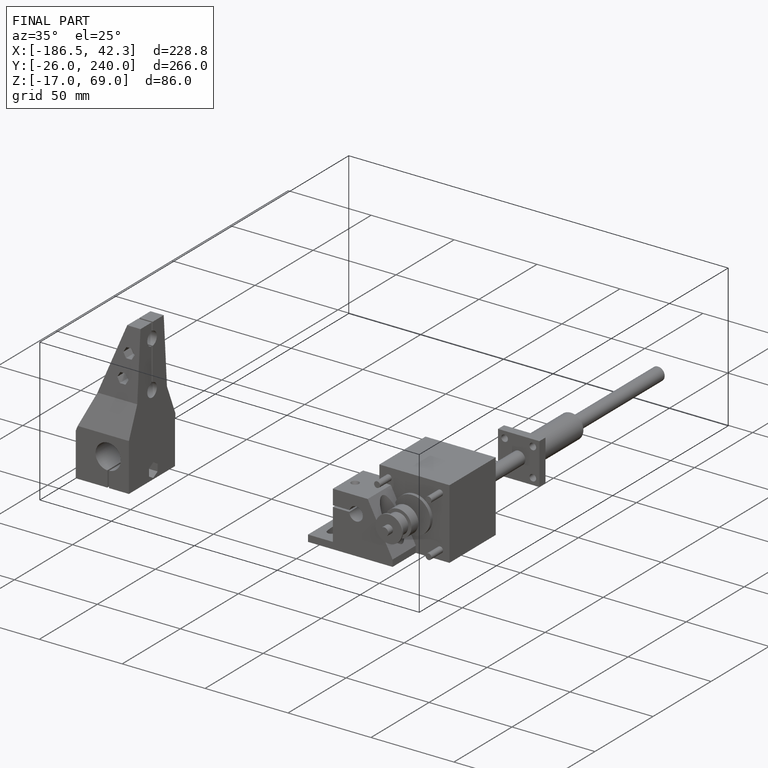
[diagram: finished part — iso view with bounding-box wireframe]
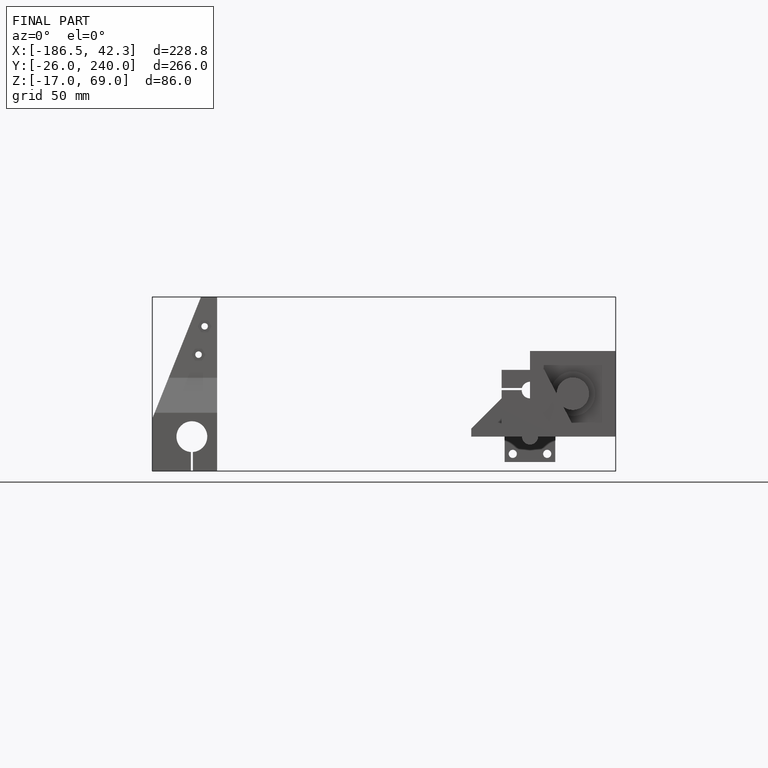
[diagram: finished part — front view with bounding-box wireframe]
